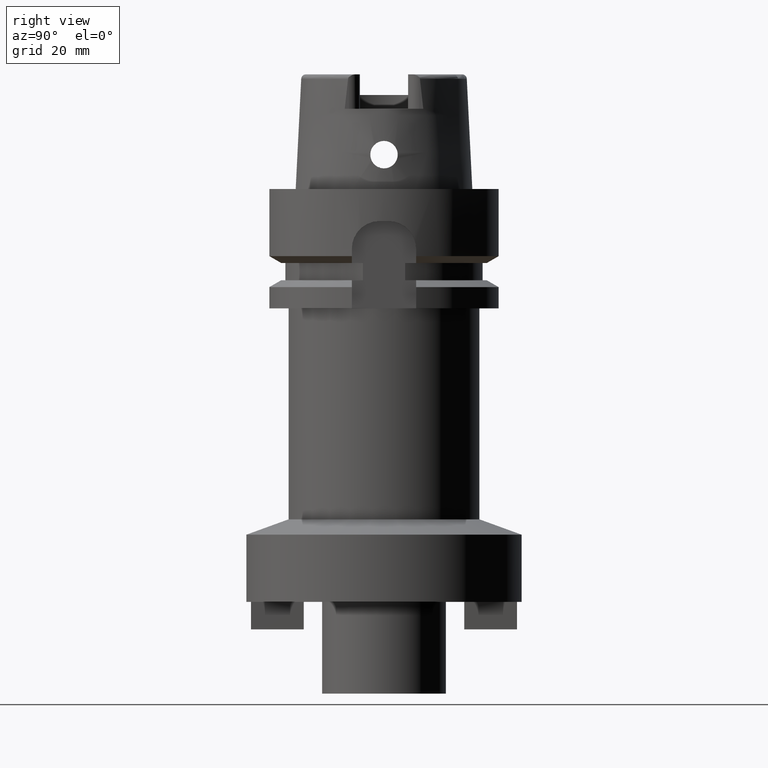
[diagram: clean part render]
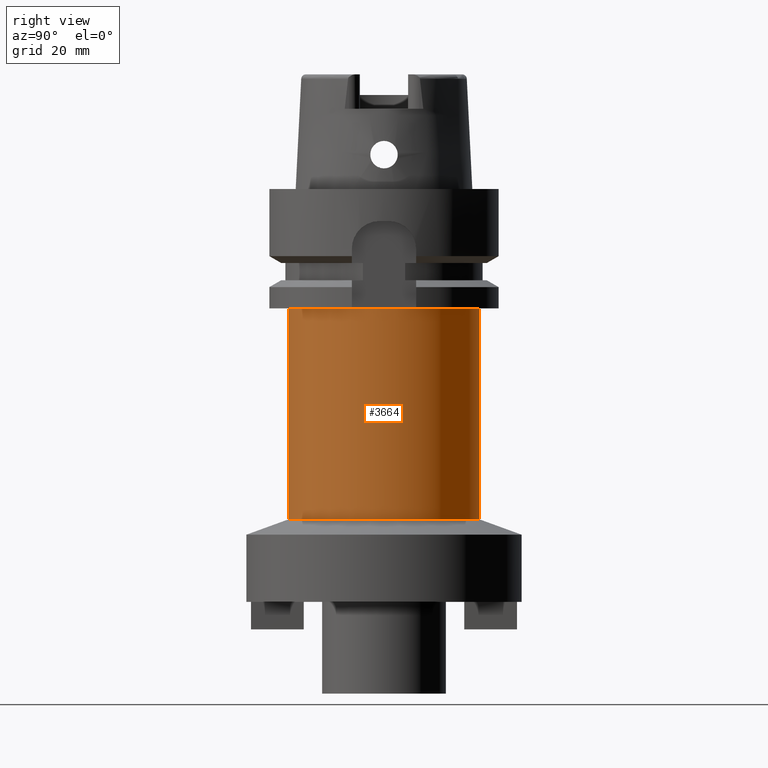
[diagram: same view with one face highlighted and labeled with its STEP entity id]
A machine part, right view. The second image highlights one B-rep face of the part: STEP entity #3664.
In plain terms, the highlighted cylindrical surface (partial cylindrical patch) has radius 20.8 mm, axis along (0, 0, 1).
Its self-contained STEP definition (entity closure, byte-faithful):
#1171=CARTESIAN_POINT('',(0.E0,0.E0,-7.2E1));
#1172=DIRECTION('',(0.E0,0.E0,1.E0));
#1173=DIRECTION('',(0.E0,-1.E0,0.E0));
#1174=AXIS2_PLACEMENT_3D('',#1171,#1172,#1173);
#1179=DIRECTION('',(0.E0,1.583274574248E-14,-1.E0));
#1180=VECTOR('',#1179,4.6E1);
#1181=CARTESIAN_POINT('',(0.E0,2.08E1,-2.6E1));
#1182=LINE('',#1181,#1180);
#1186=DIRECTION('',(0.E0,-1.583274574248E-14,-1.E0));
#1187=VECTOR('',#1186,4.6E1);
#1188=CARTESIAN_POINT('',(0.E0,-2.08E1,-2.6E1));
#1189=LINE('',#1188,#1187);
#1269=CARTESIAN_POINT('',(0.E0,0.E0,-2.6E1));
#1270=DIRECTION('',(0.E0,0.E0,-1.E0));
#1271=DIRECTION('',(0.E0,1.E0,0.E0));
#1272=AXIS2_PLACEMENT_3D('',#1269,#1270,#1271);
#2611=CARTESIAN_POINT('',(0.E0,2.08E1,-7.2E1));
#2612=VERTEX_POINT('',#2611);
#2613=CARTESIAN_POINT('',(0.E0,-2.08E1,-7.2E1));
#2614=VERTEX_POINT('',#2613);
#2615=CARTESIAN_POINT('',(0.E0,2.08E1,-2.6E1));
#2616=VERTEX_POINT('',#2615);
#2617=CARTESIAN_POINT('',(0.E0,-2.08E1,-2.6E1));
#2618=VERTEX_POINT('',#2617);
#3650=CARTESIAN_POINT('',(0.E0,0.E0,-1.1675E2));
#3651=DIRECTION('',(0.E0,0.E0,1.E0));
#3652=DIRECTION('',(0.E0,1.E0,0.E0));
#3653=AXIS2_PLACEMENT_3D('',#3650,#3651,#3652);
#3654=CYLINDRICAL_SURFACE('',#3653,2.08E1);
#3656=ORIENTED_EDGE('',*,*,#3655,.T.);
#3657=ORIENTED_EDGE('',*,*,#3645,.F.);
#3659=ORIENTED_EDGE('',*,*,#3658,.F.);
#3661=ORIENTED_EDGE('',*,*,#3660,.F.);
#3662=EDGE_LOOP('',(#3656,#3657,#3659,#3661));
#3663=FACE_OUTER_BOUND('',#3662,.F.);
#1175=CIRCLE('',#1174,2.08E1);
#1273=CIRCLE('',#1272,2.08E1);
#3645=EDGE_CURVE('',#2614,#2612,#1175,.T.);
#3655=EDGE_CURVE('',#2616,#2612,#1182,.T.);
#3658=EDGE_CURVE('',#2618,#2614,#1189,.T.);
#3660=EDGE_CURVE('',#2616,#2618,#1273,.T.);
#3664=ADVANCED_FACE('',(#3663),#3654,.T.);